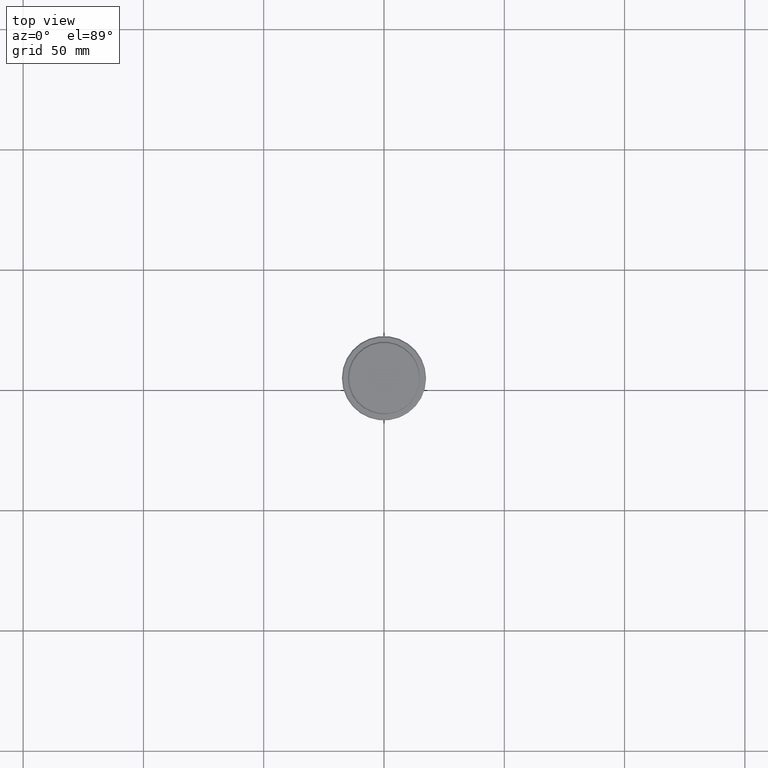
[diagram: clean part render]
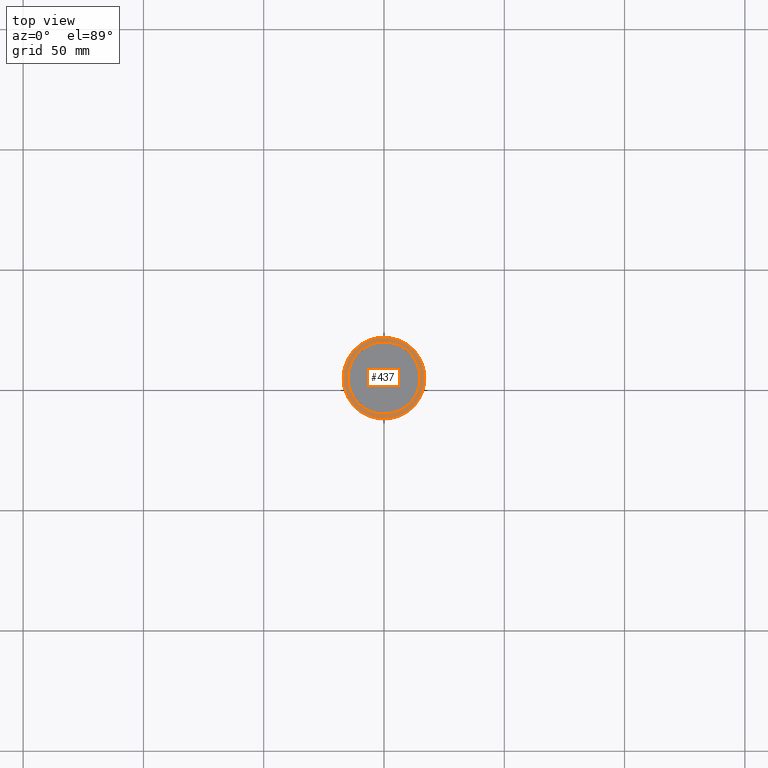
[diagram: same view with one face highlighted and labeled with its STEP entity id]
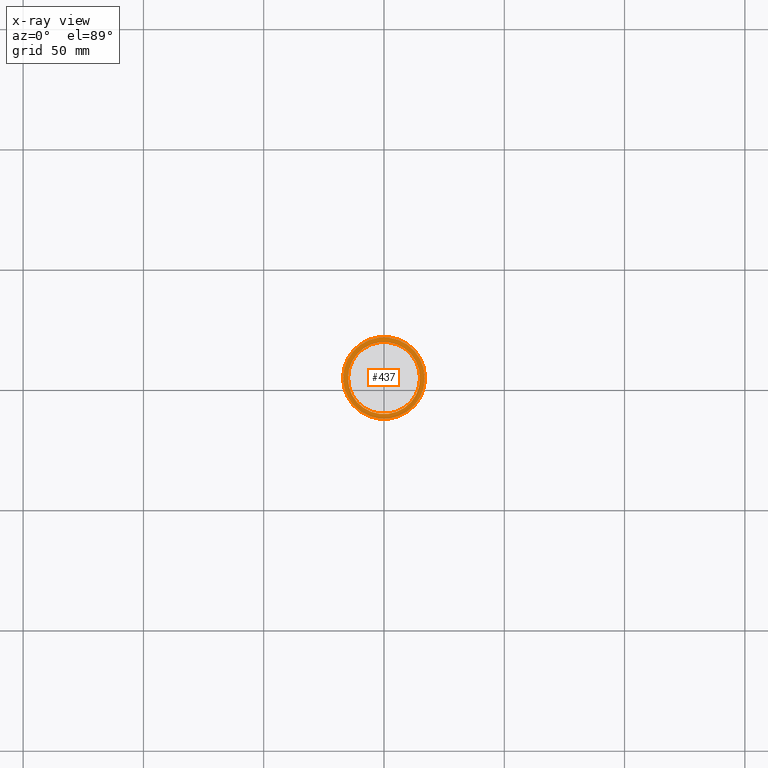
[diagram: x-ray of the same camera — body ghosted, the highlighted face saturated]
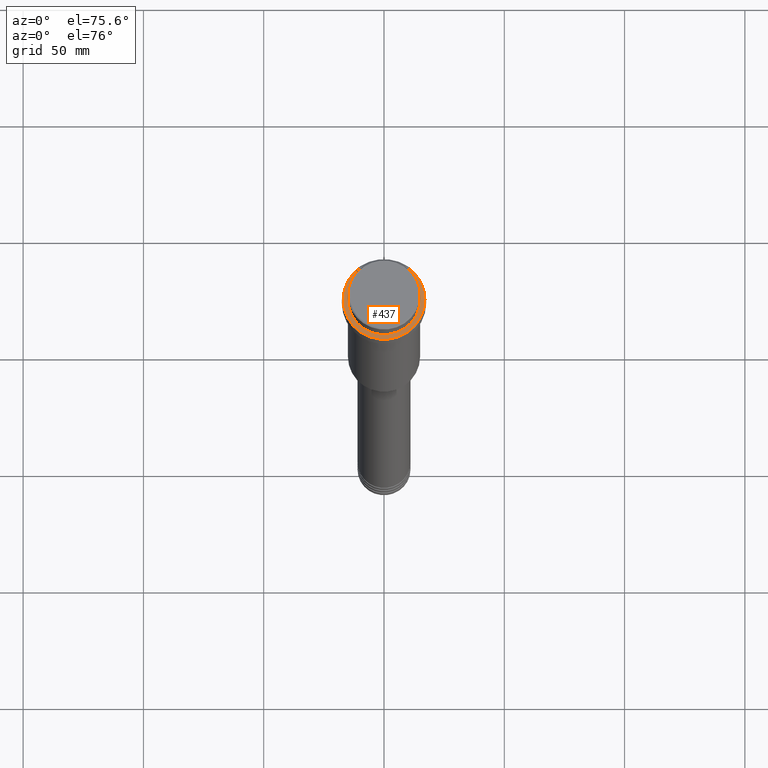
[diagram: same view with one face highlighted and labeled with its STEP entity id]
A machine part, top view. The second image highlights one B-rep face of the part: STEP entity #437.
The next image is the same camera in x-ray: the body ghosted, the highlighted face saturated — about 0% of this face is hidden behind the body in this view.
A second angle (auxiliary view) of the same face is appended — the face is thin or edge-on in the first view.
In plain terms, the highlighted planar face has unit normal (0, -0, 1).
Its self-contained STEP definition (entity closure, byte-faithful):
#22 = DIRECTION ( 'NONE',  ( 0.000000000000000000, 0.000000000000000000, -1.000000000000000000 ) ) ;
#43 = EDGE_CURVE ( 'NONE', #885, #966, #813, .T. ) ;
#114 = CARTESIAN_POINT ( 'NONE',  ( 0.000000000000000000, 0.000000000000000000, -9.000000000000001776 ) ) ;
#128 = ORIENTED_EDGE ( 'NONE', *, *, #1064, .T. ) ;
#154 = VERTEX_POINT ( 'NONE', #362 ) ;
#194 = CARTESIAN_POINT ( 'NONE',  ( 0.000000000000000000, 0.000000000000000000, -9.000000000000001776 ) ) ;
#215 = FACE_OUTER_BOUND ( 'NONE', #975, .T. ) ;
#239 = DIRECTION ( 'NONE',  ( 1.000000000000000000, 0.000000000000000000, 0.000000000000000000 ) ) ;
#303 = EDGE_LOOP ( 'NONE', ( #598, #894 ) ) ;
#317 = DIRECTION ( 'NONE',  ( 1.000000000000000000, 0.000000000000000000, 0.000000000000000000 ) ) ;
#331 = AXIS2_PLACEMENT_3D ( 'NONE', #1012, #476, #704 ) ;
#350 = DIRECTION ( 'NONE',  ( -0.000000000000000000, -0.000000000000000000, 1.000000000000000000 ) ) ;
#362 = CARTESIAN_POINT ( 'NONE',  ( 16.99999999999996092, 2.112515728529182095E-15, -9.000000000000001776 ) ) ;
#366 = CIRCLE ( 'NONE', #1393, 14.99999999999999467 ) ;
#388 = ORIENTED_EDGE ( 'NONE', *, *, #863, .T. ) ;
#437 = ADVANCED_FACE ( 'NONE', ( #215, #533 ), #1178, .T. ) ;
#449 = CIRCLE ( 'NONE', #935, 16.99999999999996092 ) ;
#453 = VERTEX_POINT ( 'NONE', #943 ) ;
#476 = DIRECTION ( 'NONE',  ( 0.000000000000000000, 0.000000000000000000, -1.000000000000000000 ) ) ;
#533 = FACE_BOUND ( 'NONE', #303, .T. ) ;
#598 = ORIENTED_EDGE ( 'NONE', *, *, #43, .T. ) ;
#704 = DIRECTION ( 'NONE',  ( 1.000000000000000000, 0.000000000000000000, 0.000000000000000000 ) ) ;
#760 = AXIS2_PLACEMENT_3D ( 'NONE', #114, #350, #239 ) ;
#813 = CIRCLE ( 'NONE', #331, 14.99999999999999467 ) ;
#863 = EDGE_CURVE ( 'NONE', #154, #453, #449, .T. ) ;
#885 = VERTEX_POINT ( 'NONE', #1377 ) ;
#894 = ORIENTED_EDGE ( 'NONE', *, *, #1097, .T. ) ;
#895 = DIRECTION ( 'NONE',  ( 1.000000000000000000, 0.000000000000000000, 0.000000000000000000 ) ) ;
#935 = AXIS2_PLACEMENT_3D ( 'NONE', #194, #1397, #1274 ) ;
#943 = CARTESIAN_POINT ( 'NONE',  ( -16.99999999999996092, 0.000000000000000000, -9.000000000000001776 ) ) ;
#966 = VERTEX_POINT ( 'NONE', #968 ) ;
#968 = CARTESIAN_POINT ( 'NONE',  ( -14.99999999999999467, 1.836970198721029194E-15, -9.000000000000001776 ) ) ;
#975 = EDGE_LOOP ( 'NONE', ( #128, #388 ) ) ;
#979 = CIRCLE ( 'NONE', #760, 16.99999999999996092 ) ;
#1004 = CARTESIAN_POINT ( 'NONE',  ( 0.000000000000000000, 0.000000000000000000, -9.000000000000001776 ) ) ;
#1012 = CARTESIAN_POINT ( 'NONE',  ( 0.000000000000000000, 0.000000000000000000, -9.000000000000001776 ) ) ;
#1064 = EDGE_CURVE ( 'NONE', #453, #154, #979, .T. ) ;
#1097 = EDGE_CURVE ( 'NONE', #966, #885, #366, .T. ) ;
#1178 = PLANE ( 'NONE',  #1400 ) ;
#1270 = DIRECTION ( 'NONE',  ( 0.000000000000000000, -0.000000000000000000, 1.000000000000000000 ) ) ;
#1274 = DIRECTION ( 'NONE',  ( 1.000000000000000000, 0.000000000000000000, 0.000000000000000000 ) ) ;
#1377 = CARTESIAN_POINT ( 'NONE',  ( 14.99999999999999467, 0.000000000000000000, -9.000000000000001776 ) ) ;
#1393 = AXIS2_PLACEMENT_3D ( 'NONE', #1004, #22, #895 ) ;
#1397 = DIRECTION ( 'NONE',  ( -0.000000000000000000, -0.000000000000000000, 1.000000000000000000 ) ) ;
#1400 = AXIS2_PLACEMENT_3D ( 'NONE', #1404, #1270, #317 ) ;
#1404 = CARTESIAN_POINT ( 'NONE',  ( 0.000000000000000000, 14.49999999999999467, -9.000000000000001776 ) ) ;